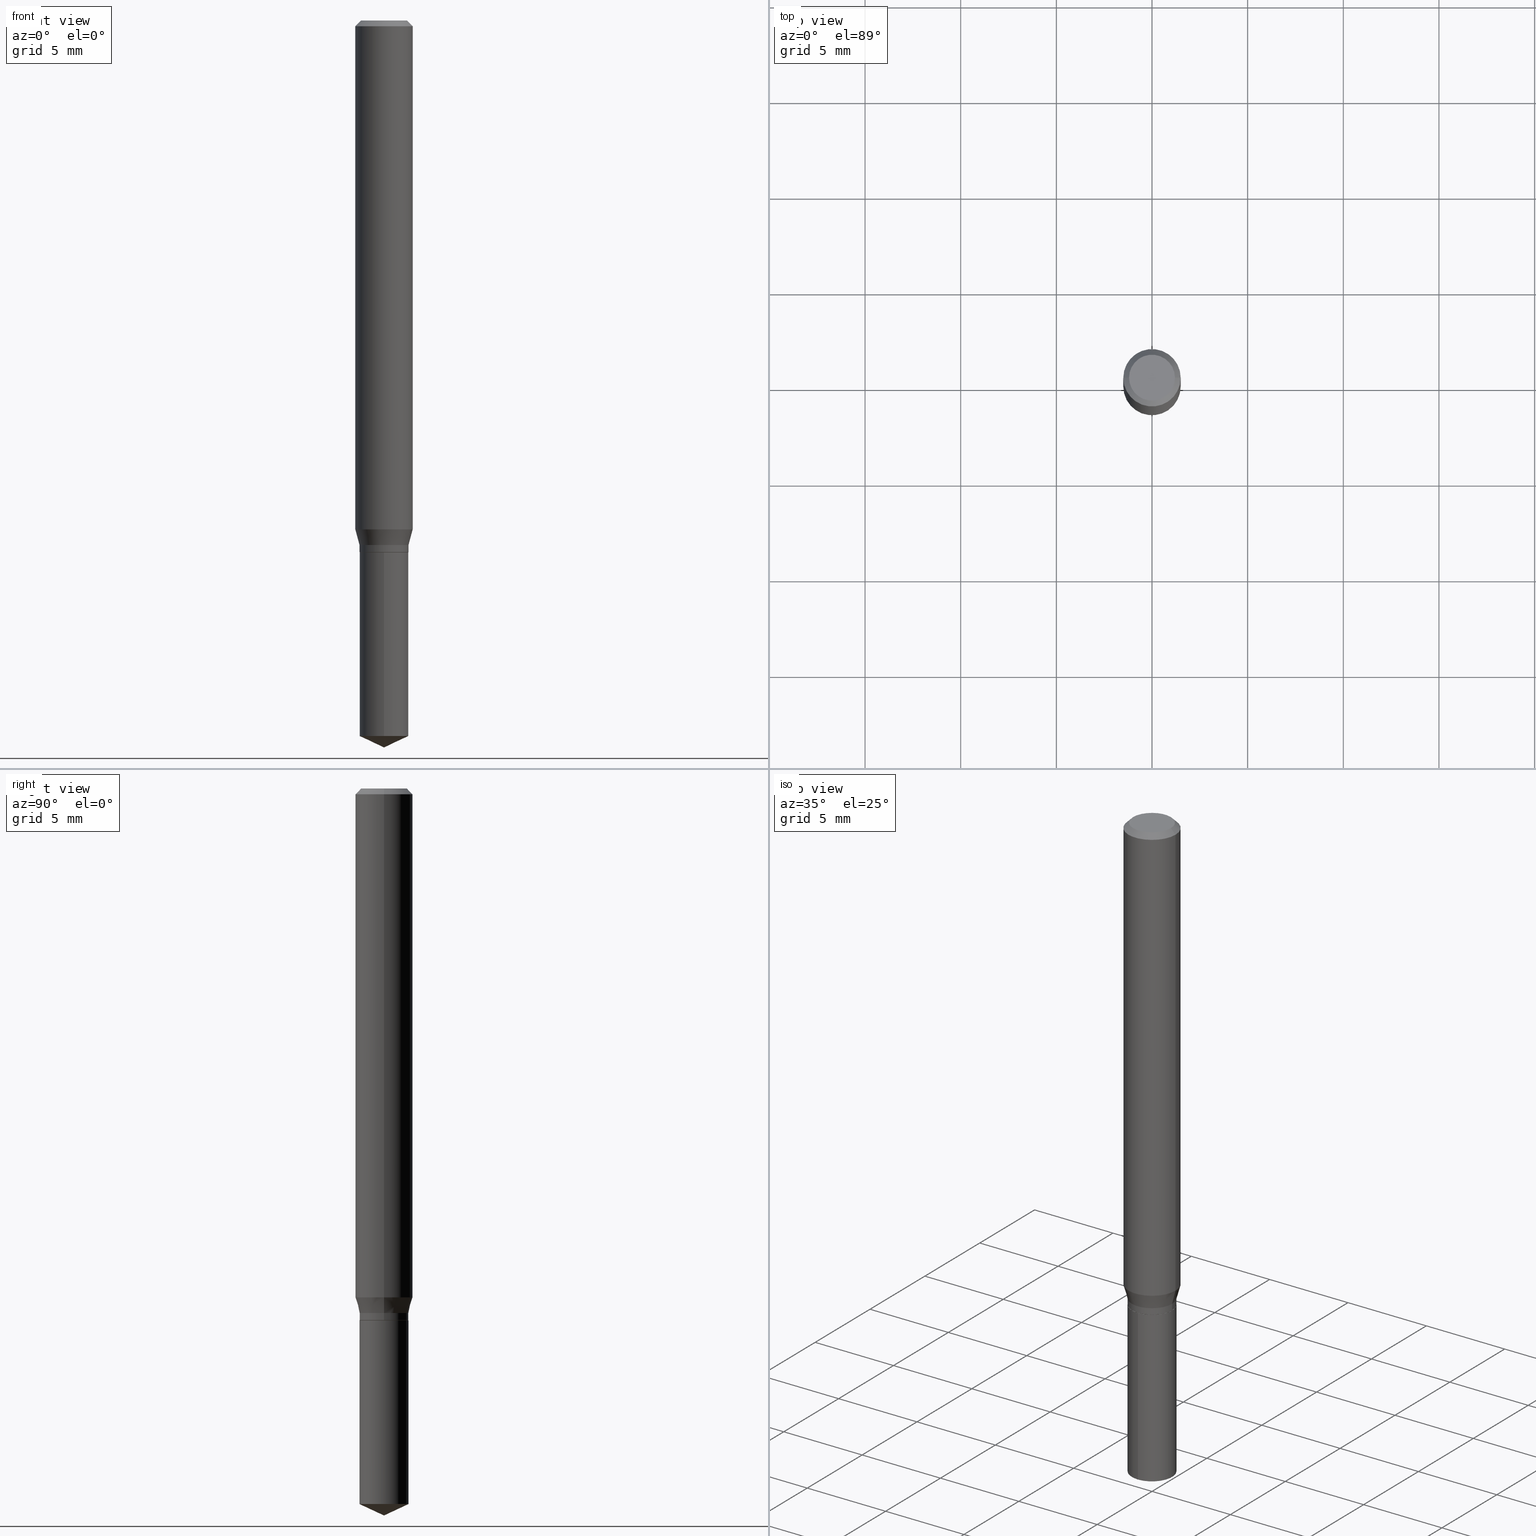
[diagram: canonical four-view strip — front | top / right | iso, engineering-drawing reading convention]
A machine part, canonical four-view strip (front | top / right | iso — engineering-drawing reading convention). The complete STEP part file that produces these views, byte-faithful:
ISO-10303-21;
HEADER;
FILE_DESCRIPTION (( 'STEP AP203' ),
    '1' );
FILE_NAME ('07668.STEP',
    '2024-04-24T00:42:20',
    ( '' ),
    ( '' ),
    'SwSTEP 2.0',
    'SolidWorks 2023',
    '' );
FILE_SCHEMA (( 'CONFIG_CONTROL_DESIGN' ));
ENDSEC;

DATA;
#1 = ORIENTED_EDGE ( 'NONE', *, *, #194, .F. ) ;
#2 = CARTESIAN_POINT ( 'NONE',  ( 2.676565608369631794E-29, -3.821426325363822773E-15, -1.094499999999999806 ) ) ;
#3 = CALENDAR_DATE ( 2024, 23, 4 ) ;
#4 = CONICAL_SURFACE ( 'NONE', #409, 0.04989999999999999991, 0.7853981633972689780 ) ;
#5 = LOCAL_TIME ( 20, 42, 20.00000000000000000, #110 ) ;
#6 = FACE_OUTER_BOUND ( 'NONE', #223, .T. ) ;
#7 = CC_DESIGN_PERSON_AND_ORGANIZATION_ASSIGNMENT ( #353, #189, ( #170 ) ) ;
#8 = CARTESIAN_POINT ( 'NONE',  ( 0.05039999999999999342, -4.171621903649789011E-15, -1.093999999999999861 ) ) ;
#9 = ORIENTED_EDGE ( 'NONE', *, *, #53, .F. ) ;
#10 = COORDINATED_UNIVERSAL_TIME_OFFSET ( 5, 0, .BEHIND. ) ;
#11 = CARTESIAN_POINT ( 'NONE',  ( -0.05039999999999999342, -3.436079232097756033E-15, -1.093999999999999861 ) ) ;
#12 = CARTESIAN_POINT ( 'NONE',  ( 0.05905000000000013710, -4.068336066525078042E-15, -1.047117760514528761 ) ) ;
#13 = AXIS2_PLACEMENT_3D ( 'NONE', #282, #436, #88 ) ;
#14 = ORIENTED_EDGE ( 'NONE', *, *, #233, .F. ) ;
#15 = CC_DESIGN_APPROVAL ( #364, ( #37 ) ) ;
#16 =( CONVERSION_BASED_UNIT ( 'INCH', #175 ) LENGTH_UNIT ( ) NAMED_UNIT ( #454 ) );
#17 = ORIENTED_EDGE ( 'NONE', *, *, #79, .F. ) ;
#18 = ADVANCED_FACE ( 'NONE', ( #247 ), #326, .T. ) ;
#19 = DIRECTION ( 'NONE',  ( 1.000000000000000000, -6.982962677686267499E-15, 4.876176775795935793E-29 ) ) ;
#20 = CARTESIAN_POINT ( 'NONE',  ( 0.04989999999999999991, -4.169876162980368296E-15, -1.094500000000000028 ) ) ;
#21 = ORIENTED_EDGE ( 'NONE', *, *, #245, .F. ) ;
#22 = CLOSED_SHELL ( 'NONE', ( #138, #96, #425, #451, #89, #379, #125, #213, #476, #277, #461, #256 ) ) ;
#23 = DIRECTION ( 'NONE',  ( 1.000000000000000000, -6.982962677686272233E-15, 0.000000000000000000 ) ) ;
#24 = AXIS2_PLACEMENT_3D ( 'NONE', #365, #77, #273 ) ;
#25 = CARTESIAN_POINT ( 'NONE',  ( -3.519413189553610679E-16, -0.05040000000000382369, -1.094499999999999806 ) ) ;
#26 = CARTESIAN_POINT ( 'NONE',  ( 2.676565608369631794E-29, -3.821426325363822773E-15, -1.094499999999999806 ) ) ;
#27 = VERTEX_POINT ( 'NONE', #473 ) ;
#28 = DIRECTION ( 'NONE',  ( 6.982962677686265922E-15, 1.000000000000000000, -3.491495526022433599E-15 ) ) ;
#29 = ORIENTED_EDGE ( 'NONE', *, *, #132, .F. ) ;
#30 = AXIS2_PLACEMENT_3D ( 'NONE', #312, #394, #278 ) ;
#31 = FACE_OUTER_BOUND ( 'NONE', #345, .T. ) ;
#32 = ORIENTED_EDGE ( 'NONE', *, *, #325, .F. ) ;
#33 = LINE ( 'NONE', #269, #367 ) ;
#34 = ORIENTED_EDGE ( 'NONE', *, *, #393, .F. ) ;
#35 = DIRECTION ( 'NONE',  ( 1.000000000000000000, -6.982962677686269866E-15, 0.000000000000000000 ) ) ;
#36 = ADVANCED_BREP_SHAPE_REPRESENTATION ( '07668', ( #201, #40, #475 ), #51 ) ;
#37 = PRODUCT_DEFINITION ( 'UNKNOWN', '', #402, #267 ) ;
#38 = ORIENTED_EDGE ( 'NONE', *, *, #288, .T. ) ;
#39 = VECTOR ( 'NONE', #177, 39.37007874015748143 ) ;
#40 = MANIFOLD_SOLID_BREP ( 'Body-Move/Copy2[2]', #22 ) ;
#41 = CIRCLE ( 'NONE', #30, 0.05039999999999999342 ) ;
#42 = VERTEX_POINT ( 'NONE', #20 ) ;
#43 = DIRECTION ( 'NONE',  ( 0.000000000000000000, 0.000000000000000000, 1.000000000000000000 ) ) ;
#44 = EDGE_LOOP ( 'NONE', ( #17, #268 ) ) ;
#45 = AXIS2_PLACEMENT_3D ( 'NONE', #204, #439, #209 ) ;
#46 = PERSON_AND_ORGANIZATION ( #362, #238 ) ;
#47 = DIRECTION ( 'NONE',  ( 1.000000000000000000, -6.982962677686265922E-15, 4.876176775795935793E-29 ) ) ;
#48 = EDGE_CURVE ( 'NONE', #235, #187, #59, .T. ) ;
#49 = DIRECTION ( 'NONE',  ( -2.445468806185136597E-29, 3.491481338843145583E-15, 1.000000000000000000 ) ) ;
#50 = CIRCLE ( 'NONE', #159, 0.05904999999999999832 ) ;
#51 =( GEOMETRIC_REPRESENTATION_CONTEXT ( 3 ) GLOBAL_UNCERTAINTY_ASSIGNED_CONTEXT ( ( #76 ) ) GLOBAL_UNIT_ASSIGNED_CONTEXT ( ( #16, #248, #130 ) ) REPRESENTATION_CONTEXT ( 'NONE', 'WORKASPACE' ) );
#52 = DIRECTION ( 'NONE',  ( -2.445468806185136597E-29, 3.491481338843145583E-15, 1.000000000000000000 ) ) ;
#53 = EDGE_CURVE ( 'NONE', #376, #343, #293, .T. ) ;
#54 = ORIENTED_EDGE ( 'NONE', *, *, #341, .T. ) ;
#55 = ORIENTED_EDGE ( 'NONE', *, *, #103, .F. ) ;
#56 = PRODUCT_RELATED_PRODUCT_CATEGORY ( 'detail', '', ( #170 ) ) ;
#57 = CARTESIAN_POINT ( 'NONE',  ( -0.05904999999999999832, 3.711095515056362547E-16, -0.01181000000000007218 ) ) ;
#58 = EDGE_LOOP ( 'NONE', ( #448, #350, #279, #262 ) ) ;
#59 = CIRCLE ( 'NONE', #348, 0.05039999999999999342 ) ;
#60 = ORIENTED_EDGE ( 'NONE', *, *, #48, .F. ) ;
#61 = EDGE_CURVE ( 'NONE', #174, #271, #196, .T. ) ;
#62 = ORIENTED_EDGE ( 'NONE', *, *, #483, .F. ) ;
#63 = CIRCLE ( 'NONE', #113, 0.05905000000000013710 ) ;
#64 = AXIS2_PLACEMENT_3D ( 'NONE', #166, #328, #469 ) ;
#65 = CIRCLE ( 'NONE', #212, 0.05039999999999999342 ) ;
#66 = DIRECTION ( 'NONE',  ( -6.982962677686266711E-15, -1.000000000000000000, 5.420333320762426626E-15 ) ) ;
#67 = LINE ( 'NONE', #481, #98 ) ;
#68 = ORIENTED_EDGE ( 'NONE', *, *, #61, .T. ) ;
#69 = PERSON_AND_ORGANIZATION ( #362, #238 ) ;
#70 = CARTESIAN_POINT ( 'NONE',  ( 2.676565608369631794E-29, -3.821426325363822773E-15, -1.094499999999999806 ) ) ;
#71 = AXIS2_PLACEMENT_3D ( 'NONE', #197, #117, #315 ) ;
#72 = CARTESIAN_POINT ( 'NONE',  ( 2.676565608369632355E-29, -3.821426325363822773E-15, -1.094500000000000028 ) ) ;
#73 = ORIENTED_EDGE ( 'NONE', *, *, #460, .F. ) ;
#74 = APPLICATION_PROTOCOL_DEFINITION ( 'international standard', 'config_control_design', 1994, #85 ) ;
#75 = DIRECTION ( 'NONE',  ( 0.2588190451025215721, 1.565188264969619995E-15, 0.9659258262890679791 ) ) ;
#76 = UNCERTAINTY_MEASURE_WITH_UNIT (LENGTH_MEASURE( 1.000000000000000082E-05 ), #16, 'distance_accuracy_value', 'NONE');
#77 = DIRECTION ( 'NONE',  ( -2.445468806185136597E-29, 3.491481338843145583E-15, 1.000000000000000000 ) ) ;
#78 = AXIS2_PLACEMENT_3D ( 'NONE', #303, #424, #199 ) ;
#79 = EDGE_CURVE ( 'NONE', #42, #147, #444, .T. ) ;
#80 = DIRECTION ( 'NONE',  ( 0.7071067811865453523, -7.319954787623248157E-15, -0.7071067811865496822 ) ) ;
#81 = PERSON_AND_ORGANIZATION_ROLE ( 'design_supplier' ) ;
#82 = DIRECTION ( 'NONE',  ( 1.000000000000000000, -6.982962677686266711E-15, 0.000000000000000000 ) ) ;
#83 = DIRECTION ( 'NONE',  ( 1.000000000000000000, -6.982962677686264344E-15, 0.000000000000000000 ) ) ;
#84 = CARTESIAN_POINT ( 'NONE',  ( -0.05904999999999999832, -1.429037772043379946E-15, -0.01181000000000007218 ) ) ;
#85 = APPLICATION_CONTEXT ( 'configuration controlled 3d designs of mechanical parts and assemblies' ) ;
#86 = DIRECTION ( 'NONE',  ( -2.445468806185136877E-29, 3.491481338843145188E-15, 1.000000000000000000 ) ) ;
#87 = VECTOR ( 'NONE', #75, 39.37007874015748143 ) ;
#88 = DIRECTION ( 'NONE',  ( 1.000000000000000000, -6.982962677686269866E-15, 0.000000000000000000 ) ) ;
#89 = ADVANCED_FACE ( 'NONE', ( #205 ), #479, .T. ) ;
#90 = VERTEX_POINT ( 'NONE', #11 ) ;
#91 = ORIENTED_EDGE ( 'NONE', *, *, #460, .T. ) ;
#92 = EDGE_LOOP ( 'NONE', ( #55, #414, #333, #101 ) ) ;
#93 = PRODUCT_DEFINITION_SHAPE ( 'NONE', 'NONE',  #37 ) ;
#94 = DIRECTION ( 'NONE',  ( -2.445468806185136877E-29, 3.491481338843145188E-15, 1.000000000000000000 ) ) ;
#95 = CARTESIAN_POINT ( 'NONE',  ( 8.265746106709734507E-48, -1.180129479067563789E-33, -3.380025165646692144E-19 ) ) ;
#96 = ADVANCED_FACE ( 'NONE', ( #399 ), #387, .T. ) ;
#97 = AXIS2_PLACEMENT_3D ( 'NONE', #95, #334, #133 ) ;
#98 = VECTOR ( 'NONE', #450, 39.37007874015748854 ) ;
#99 = EDGE_LOOP ( 'NONE', ( #297, #207, #14, #360 ) ) ;
#100 = DIRECTION ( 'NONE',  ( -6.982962677686268288E-15, -1.000000000000000000, 3.520397390770387606E-15 ) ) ;
#101 = ORIENTED_EDGE ( 'NONE', *, *, #155, .F. ) ;
#102 = CARTESIAN_POINT ( 'NONE',  ( 2.888098660104664204E-31, -4.123439461173780263E-17, -0.01181000000000007218 ) ) ;
#103 = EDGE_CURVE ( 'NONE', #246, #226, #361, .T. ) ;
#104 = DIRECTION ( 'NONE',  ( 0.7071067811864205632, -2.468850131080928224E-15, 0.7071067811866742492 ) ) ;
#105 = CC_DESIGN_DATE_AND_TIME_ASSIGNMENT ( #423, #240, ( #411 ) ) ;
#106 = DIRECTION ( 'NONE',  ( -1.000000000000000000, 6.982962677686266711E-15, 0.000000000000000000 ) ) ;
#107 = DIRECTION ( 'NONE',  ( -2.445468806185136597E-29, 3.491481338843145583E-15, 1.000000000000000000 ) ) ;
#108 = DIRECTION ( 'NONE',  ( 1.000000000000000000, 0.000000000000000000, 0.000000000000000000 ) ) ;
#109 = CARTESIAN_POINT ( 'NONE',  ( 0.000000000000000000, 0.000000000000000000, 0.000000000000000000 ) ) ;
#110 = COORDINATED_UNIVERSAL_TIME_OFFSET ( 5, 0, .BEHIND. ) ;
#111 = LINE ( 'NONE', #25, #320 ) ;
#112 = DIRECTION ( 'NONE',  ( -2.445468806185136597E-29, 3.491481338843145583E-15, 1.000000000000000000 ) ) ;
#113 = AXIS2_PLACEMENT_3D ( 'NONE', #431, #366, #369 ) ;
#114 = CC_DESIGN_SECURITY_CLASSIFICATION ( #411, ( #402 ) ) ;
#115 = CARTESIAN_POINT ( 'NONE',  ( 0.05904999999999999832, -4.463468013801466955E-16, -0.01181000000000007218 ) ) ;
#116 = DATE_AND_TIME ( #3, #145 ) ;
#117 = DIRECTION ( 'NONE',  ( -2.445468806185136597E-29, 3.491481338843145583E-15, 1.000000000000000000 ) ) ;
#118 = DATE_AND_TIME ( #434, #5 ) ;
#119 = EDGE_CURVE ( 'NONE', #452, #246, #63, .T. ) ;
#120 = AXIS2_PLACEMENT_3D ( 'NONE', #109, #304, #433 ) ;
#121 = CONICAL_SURFACE ( 'NONE', #368, 0.05904999999999999832, 0.7853981633974452814 ) ;
#122 = EDGE_LOOP ( 'NONE', ( #9, #329, #54, #281 ) ) ;
#123 = DIRECTION ( 'NONE',  ( 1.000000000000000000, -6.982962677686266711E-15, 4.876176775795936353E-29 ) ) ;
#124 = EDGE_LOOP ( 'NONE', ( #354, #418, #216, #206 ) ) ;
#125 = ADVANCED_FACE ( 'NONE', ( #430 ), #270, .T. ) ;
#126 = SECURITY_CLASSIFICATION_LEVEL ( 'unclassified' ) ;
#127 = FACE_OUTER_BOUND ( 'NONE', #317, .T. ) ;
#128 = AXIS2_PLACEMENT_3D ( 'NONE', #464, #200, #363 ) ;
#129 = CIRCLE ( 'NONE', #438, 0.05040000000000000036 ) ;
#130 =( NAMED_UNIT ( * ) SI_UNIT ( $, .STERADIAN. ) SOLID_ANGLE_UNIT ( ) );
#131 = DIRECTION ( 'NONE',  ( -6.982962677686266711E-15, -1.000000000000000000, 2.710166660381213313E-15 ) ) ;
#132 = EDGE_CURVE ( 'NONE', #167, #226, #50, .T. ) ;
#133 = DIRECTION ( 'NONE',  ( 1.000000000000000000, -6.982962677686266711E-15, 4.876185090822587894E-29 ) ) ;
#134 = AXIS2_PLACEMENT_3D ( 'NONE', #193, #344, #351 ) ;
#135 = CARTESIAN_POINT ( 'NONE',  ( 0.05039999999999999342, -3.519413189553878398E-16, 2.457593095001151258E-30 ) ) ;
#136 = ORIENTED_EDGE ( 'NONE', *, *, #233, .T. ) ;
#137 = CARTESIAN_POINT ( 'NONE',  ( 3.601188957232831225E-29, -5.141554129063645912E-15, -1.472598094028988447 ) ) ;
#138 = ADVANCED_FACE ( 'NONE', ( #127 ), #313, .T. ) ;
#139 = CC_DESIGN_PERSON_AND_ORGANIZATION_ASSIGNMENT ( #202, #81, ( #402 ) ) ;
#140 = ORIENTED_EDGE ( 'NONE', *, *, #470, .T. ) ;
#141 = ORIENTED_EDGE ( 'NONE', *, *, #155, .T. ) ;
#142 = PLANE ( 'NONE',  #420 ) ;
#143 = FACE_OUTER_BOUND ( 'NONE', #308, .T. ) ;
#144 = LINE ( 'NONE', #149, #258 ) ;
#145 = LOCAL_TIME ( 20, 42, 20.00000000000000000, #310 ) ;
#146 = APPLICATION_CONTEXT ( 'configuration controlled 3d designs of mechanical parts and assemblies' ) ;
#147 = VERTEX_POINT ( 'NONE', #406 ) ;
#148 = ORIENTED_EDGE ( 'NONE', *, *, #422, .T. ) ;
#149 = CARTESIAN_POINT ( 'NONE',  ( -0.05039999999999999342, -3.410591418324201292E-15, -1.079399999999999915 ) ) ;
#150 = APPROVAL_STATUS ( 'not_yet_approved' ) ;
#151 = EDGE_LOOP ( 'NONE', ( #244, #91, #287, #34 ) ) ;
#152 = EDGE_LOOP ( 'NONE', ( #1, #148, #157, #32 ) ) ;
#153 = CARTESIAN_POINT ( 'NONE',  ( 0.04989999999999999991, -4.169876162980368296E-15, -1.094500000000000028 ) ) ;
#154 = CIRCLE ( 'NONE', #237, 0.05039999999999999342 ) ;
#155 = EDGE_CURVE ( 'NONE', #226, #167, #284, .T. ) ;
#156 = APPROVAL_ROLE ( '' ) ;
#157 = ORIENTED_EDGE ( 'NONE', *, *, #198, .T. ) ;
#158 = DIRECTION ( 'NONE',  ( 1.000000000000000000, -6.982962677686266711E-15, 4.876176775795936353E-29 ) ) ;
#159 = AXIS2_PLACEMENT_3D ( 'NONE', #318, #400, #82 ) ;
#160 = AXIS2_PLACEMENT_3D ( 'NONE', #292, #251, #83 ) ;
#161 = DIRECTION ( 'NONE',  ( -2.438088387897960049E-29, 3.491481338843145188E-15, 1.000000000000000000 ) ) ;
#162 = CALENDAR_DATE ( 2024, 23, 4 ) ;
#163 = APPLICATION_PROTOCOL_DEFINITION ( 'international standard', 'config_control_design', 1994, #146 ) ;
#164 = EDGE_LOOP ( 'NONE', ( #413, #408, #21 ) ) ;
#165 = DATE_AND_TIME ( #323, #301 ) ;
#166 = CARTESIAN_POINT ( 'NONE',  ( 2.888098660104664204E-31, -4.123439461173780263E-17, -0.01181000000000007218 ) ) ;
#167 = VERTEX_POINT ( 'NONE', #370 ) ;
#168 = DIRECTION ( 'NONE',  ( -0.7071067811865453523, 2.468850131082234184E-15, -0.7071067811865496822 ) ) ;
#169 = ADVANCED_FACE ( 'NONE', ( #241 ), #188, .T. ) ;
#170 = PRODUCT ( '07668', '07668', '', ( #230 ) ) ;
#171 = DIRECTION ( 'NONE',  ( -6.982962677686266711E-15, -1.000000000000000000, 2.710166660381213313E-15 ) ) ;
#172 = CYLINDRICAL_SURFACE ( 'NONE', #242, 0.05039999999999999342 ) ;
#173 = EDGE_LOOP ( 'NONE', ( #62, #445, #38, #459 ) ) ;
#174 = VERTEX_POINT ( 'NONE', #477 ) ;
#175 = LENGTH_MEASURE_WITH_UNIT ( LENGTH_MEASURE( 0.02539999999999999897 ), #290 );
#176 = APPROVAL_DATE_TIME ( #165, #249 ) ;
#177 = DIRECTION ( 'NONE',  ( -2.445468806185136877E-29, 3.491481338843145188E-15, 1.000000000000000000 ) ) ;
#178 = DIRECTION ( 'NONE',  ( -2.445468806185136597E-29, 3.491481338843145583E-15, 1.000000000000000000 ) ) ;
#179 = CLOSED_SHELL ( 'NONE', ( #18, #183, #169, #283, #346 ) ) ;
#180 = CIRCLE ( 'NONE', #128, 0.04989999999999999991 ) ;
#181 = ORIENTED_EDGE ( 'NONE', *, *, #190, .F. ) ;
#182 = DIRECTION ( 'NONE',  ( -6.982962677686266711E-15, -1.000000000000000000, 5.420333320762426626E-15 ) ) ;
#183 = ADVANCED_FACE ( 'NONE', ( #443 ), #462, .T. ) ;
#184 = DIRECTION ( 'NONE',  ( 2.445458899330789267E-29, -3.491495526022433599E-15, -1.000000000000000000 ) ) ;
#185 = CYLINDRICAL_SURFACE ( 'NONE', #338, 0.05040000000000000036 ) ;
#186 = PERSON_AND_ORGANIZATION ( #362, #238 ) ;
#187 = VERTEX_POINT ( 'NONE', #291 ) ;
#188 = CONICAL_SURFACE ( 'NONE', #449, 84.42940631927592676, 1.134464013796323112 ) ;
#189 = PERSON_AND_ORGANIZATION_ROLE ( 'design_owner' ) ;
#190 = EDGE_CURVE ( 'NONE', #331, #90, #154, .T. ) ;
#191 = CARTESIAN_POINT ( 'NONE',  ( 0.000000000000000000, 0.000000000000000000, 0.000000000000000000 ) ) ;
#192 = ORIENTED_EDGE ( 'NONE', *, *, #190, .T. ) ;
#193 = CARTESIAN_POINT ( 'NONE',  ( 4.132873053354867254E-48, -5.900647395337818946E-34, -1.690012582823346072E-19 ) ) ;
#194 = EDGE_CURVE ( 'NONE', #90, #187, #471, .T. ) ;
#195 = PERSON_AND_ORGANIZATION ( #362, #238 ) ;
#196 = CIRCLE ( 'NONE', #97, 0.04724000000000000421 ) ;
#197 = CARTESIAN_POINT ( 'NONE',  ( 8.265746106709734507E-48, -1.180129479067563789E-33, -3.380025165646692144E-19 ) ) ;
#198 = EDGE_CURVE ( 'NONE', #331, #235, #260, .T. ) ;
#199 = DIRECTION ( 'NONE',  ( -1.000000000000000000, 6.982962677686266711E-15, 0.000000000000000000 ) ) ;
#200 = DIRECTION ( 'NONE',  ( -2.445468806185136597E-29, 3.491481338843145583E-15, 1.000000000000000000 ) ) ;
#201 = MANIFOLD_SOLID_BREP ( 'Body-Move/Copy2[1]', #179 ) ;
#202 = PERSON_AND_ORGANIZATION ( #362, #238 ) ;
#203 = AXIS2_PLACEMENT_3D ( 'NONE', #356, #49, #158 ) ;
#204 = CARTESIAN_POINT ( 'NONE',  ( 2.639639029396236252E-29, -3.768704957147291788E-15, -1.079399999999999915 ) ) ;
#205 = FACE_OUTER_BOUND ( 'NONE', #252, .T. ) ;
#206 = ORIENTED_EDGE ( 'NONE', *, *, #447, .F. ) ;
#207 = ORIENTED_EDGE ( 'NONE', *, *, #53, .T. ) ;
#208 = CARTESIAN_POINT ( 'NONE',  ( 3.581135388231172189E-16, 0.05039999999999617702, -1.094500000000000028 ) ) ;
#209 = DIRECTION ( 'NONE',  ( 1.000000000000000000, -6.982962677686272233E-15, 0.000000000000000000 ) ) ;
#210 = CARTESIAN_POINT ( 'NONE',  ( 2.676565608369631794E-29, -3.821426325363822773E-15, -1.094499999999999806 ) ) ;
#211 = CARTESIAN_POINT ( 'NONE',  ( 3.581135388231264880E-16, 0.05039999999999486557, -1.472598094028988891 ) ) ;
#212 = AXIS2_PLACEMENT_3D ( 'NONE', #309, #107, #466 ) ;
#213 = ADVANCED_FACE ( 'NONE', ( #255 ), #217, .T. ) ;
#214 = CARTESIAN_POINT ( 'NONE',  ( -9.261924752013118283E-28, 1.322368428517963298E-13, 37.87397874015748300 ) ) ;
#215 = CARTESIAN_POINT ( 'NONE',  ( 2.639639029396236252E-29, -3.768704957147291788E-15, -1.079399999999999915 ) ) ;
#216 = ORIENTED_EDGE ( 'NONE', *, *, #119, .F. ) ;
#217 = CYLINDRICAL_SURFACE ( 'NONE', #319, 0.05905000000000006771 ) ;
#218 = VERTEX_POINT ( 'NONE', #432 ) ;
#219 = CARTESIAN_POINT ( 'NONE',  ( 2.676565608369631794E-29, -3.821426325363822773E-15, -1.094499999999999806 ) ) ;
#220 = LINE ( 'NONE', #265, #457 ) ;
#221 = AXIS2_PLACEMENT_3D ( 'NONE', #489, #264, #66 ) ;
#222 = DIRECTION ( 'NONE',  ( -2.445458899330790108E-29, 3.491495526022433205E-15, 1.000000000000000000 ) ) ;
#223 = EDGE_LOOP ( 'NONE', ( #289, #229, #29, #332 ) ) ;
#224 = CARTESIAN_POINT ( 'NONE',  ( -3.519413189553610679E-16, -0.05040000000000382369, -1.094499999999999806 ) ) ;
#225 = DIRECTION ( 'NONE',  ( -6.328713451373394622E-15, -0.9063077870366521571, 0.4226182617406945008 ) ) ;
#226 = VERTEX_POINT ( 'NONE', #84 ) ;
#227 = COORDINATED_UNIVERSAL_TIME_OFFSET ( 5, 0, .BEHIND. ) ;
#228 = AXIS2_PLACEMENT_3D ( 'NONE', #70, #385, #257 ) ;
#229 = ORIENTED_EDGE ( 'NONE', *, *, #103, .T. ) ;
#230 = MECHANICAL_CONTEXT ( 'NONE', #146, 'mechanical' ) ;
#231 = APPROVAL_PERSON_ORGANIZATION ( #186, #364, #384 ) ;
#232 = DIRECTION ( 'NONE',  ( -2.445458899330790108E-29, 3.491495526022433205E-15, 1.000000000000000000 ) ) ;
#233 = EDGE_CURVE ( 'NONE', #250, #343, #427, .T. ) ;
#234 = PLANE ( 'NONE',  #380 ) ;
#235 = VERTEX_POINT ( 'NONE', #386 ) ;
#236 = CC_DESIGN_PERSON_AND_ORGANIZATION_ASSIGNMENT ( #467, #429, ( #402 ) ) ;
#237 = AXIS2_PLACEMENT_3D ( 'NONE', #412, #295, #23 ) ;
#238 = ORGANIZATION ( 'UNSPECIFIED', 'UNSPECIFIED', '' ) ;
#239 = FACE_OUTER_BOUND ( 'NONE', #44, .T. ) ;
#240 = DATE_TIME_ROLE ( 'classification_date' ) ;
#241 = FACE_OUTER_BOUND ( 'NONE', #164, .T. ) ;
#242 = AXIS2_PLACEMENT_3D ( 'NONE', #324, #286, #19 ) ;
#243 = ORIENTED_EDGE ( 'NONE', *, *, #198, .F. ) ;
#244 = ORIENTED_EDGE ( 'NONE', *, *, #61, .F. ) ;
#245 = EDGE_CURVE ( 'NONE', #376, #218, #468, .T. ) ;
#246 = VERTEX_POINT ( 'NONE', #307 ) ;
#247 = FACE_OUTER_BOUND ( 'NONE', #99, .T. ) ;
#248 =( NAMED_UNIT ( * ) PLANE_ANGLE_UNIT ( ) SI_UNIT ( $, .RADIAN. ) );
#249 = APPROVAL ( #398, 'UNSPECIFIED' ) ;
#250 = VERTEX_POINT ( 'NONE', #224 ) ;
#251 = DIRECTION ( 'NONE',  ( -2.445468806185136597E-29, 3.491481338843145583E-15, 1.000000000000000000 ) ) ;
#252 = EDGE_LOOP ( 'NONE', ( #192, #352, #60, #243 ) ) ;
#253 = DIRECTION ( 'NONE',  ( -2.445458899330790108E-29, 3.491495526022433205E-15, 1.000000000000000000 ) ) ;
#254 = EDGE_LOOP ( 'NONE', ( #73, #390, #381, #141 ) ) ;
#255 = FACE_OUTER_BOUND ( 'NONE', #92, .T. ) ;
#256 = ADVANCED_FACE ( 'NONE', ( #311 ), #4, .T. ) ;
#257 = DIRECTION ( 'NONE',  ( -6.982962677686266711E-15, -1.000000000000000000, 2.710166660381213313E-15 ) ) ;
#258 = VECTOR ( 'NONE', #486, 39.37007874015748143 ) ;
#259 = CC_DESIGN_APPROVAL ( #327, ( #402 ) ) ;
#260 = LINE ( 'NONE', #135, #371 ) ;
#261 = LINE ( 'NONE', #302, #330 ) ;
#262 = ORIENTED_EDGE ( 'NONE', *, *, #403, .F. ) ;
#263 = EDGE_CURVE ( 'NONE', #452, #167, #33, .T. ) ;
#264 = DIRECTION ( 'NONE',  ( -2.445458899330790108E-29, 3.491495526022433205E-15, 1.000000000000000000 ) ) ;
#265 = CARTESIAN_POINT ( 'NONE',  ( -0.04989999999999999991, -3.466865500219533176E-15, -1.094500000000000028 ) ) ;
#266 = CC_DESIGN_DATE_AND_TIME_ASSIGNMENT ( #116, #482, ( #37 ) ) ;
#267 = DESIGN_CONTEXT ( 'detailed design', #85, 'design' ) ;
#268 = ORIENTED_EDGE ( 'NONE', *, *, #463, .F. ) ;
#269 = CARTESIAN_POINT ( 'NONE',  ( 0.05905000000000006771, -4.123439461173745257E-16, 2.879382386107503723E-30 ) ) ;
#270 = CONICAL_SURFACE ( 'NONE', #45, 0.05039999999999999342, 0.2617993877991502960 ) ;
#271 = VERTEX_POINT ( 'NONE', #389 ) ;
#272 = VECTOR ( 'NONE', #168, 39.37007874015748143 ) ;
#273 = DIRECTION ( 'NONE',  ( 1.000000000000000000, -6.982962677686272233E-15, 0.000000000000000000 ) ) ;
#274 = LINE ( 'NONE', #426, #87 ) ;
#275 = APPROVAL_DATE_TIME ( #118, #327 ) ;
#276 = VECTOR ( 'NONE', #86, 39.37007874015748143 ) ;
#277 = ADVANCED_FACE ( 'NONE', ( #143 ), #382, .F. ) ;
#278 = DIRECTION ( 'NONE',  ( 1.000000000000000000, -6.982962677686272233E-15, 0.000000000000000000 ) ) ;
#279 = ORIENTED_EDGE ( 'NONE', *, *, #447, .T. ) ;
#280 = DIRECTION ( 'NONE',  ( -2.445468806185136597E-29, 3.491481338843145583E-15, 1.000000000000000000 ) ) ;
#281 = ORIENTED_EDGE ( 'NONE', *, *, #397, .F. ) ;
#282 = CARTESIAN_POINT ( 'NONE',  ( 2.676565608369632355E-29, -3.821426325363822773E-15, -1.094500000000000028 ) ) ;
#283 = ADVANCED_FACE ( 'NONE', ( #490 ), #185, .T. ) ;
#284 = CIRCLE ( 'NONE', #64, 0.05904999999999999832 ) ;
#285 = LOCAL_TIME ( 20, 42, 20.00000000000000000, #358 ) ;
#286 = DIRECTION ( 'NONE',  ( -2.445468806185136597E-29, 3.491481338843145583E-15, 1.000000000000000000 ) ) ;
#287 = ORIENTED_EDGE ( 'NONE', *, *, #132, .T. ) ;
#288 = EDGE_CURVE ( 'NONE', #42, #331, #299, .T. ) ;
#289 = ORIENTED_EDGE ( 'NONE', *, *, #119, .T. ) ;
#290 =( LENGTH_UNIT ( ) NAMED_UNIT ( * ) SI_UNIT ( $, .METRE. ) );
#291 = CARTESIAN_POINT ( 'NONE',  ( -0.05039999999999999342, -3.436079232097756033E-15, -1.079399999999999915 ) ) ;
#292 = CARTESIAN_POINT ( 'NONE',  ( 2.560693819740718204E-29, -3.655992120407703121E-15, -1.047117760514528761 ) ) ;
#293 = LINE ( 'NONE', #208, #484 ) ;
#294 = EDGE_CURVE ( 'NONE', #187, #246, #144, .T. ) ;
#295 = DIRECTION ( 'NONE',  ( -2.445468806185136597E-29, 3.491481338843145583E-15, 1.000000000000000000 ) ) ;
#296 = DIRECTION ( 'NONE',  ( -2.445458899330790108E-29, 3.491495526022433205E-15, 1.000000000000000000 ) ) ;
#297 = ORIENTED_EDGE ( 'NONE', *, *, #355, .T. ) ;
#298 = CARTESIAN_POINT ( 'NONE',  ( -9.261924752013118283E-28, 1.322368428517963298E-13, 37.87397874015748300 ) ) ;
#299 = LINE ( 'NONE', #153, #419 ) ;
#300 = PERSON_AND_ORGANIZATION_ROLE ( 'creator' ) ;
#301 = LOCAL_TIME ( 20, 42, 20.00000000000000000, #10 ) ;
#302 = CARTESIAN_POINT ( 'NONE',  ( 3.658651059288795076E-29, -5.223626456482161457E-15, -1.496099999999999985 ) ) ;
#303 = CARTESIAN_POINT ( 'NONE',  ( 2.888098660104664204E-31, -4.123439461173780263E-17, -0.01181000000000007218 ) ) ;
#304 = DIRECTION ( 'NONE',  ( -2.445468806185136597E-29, 3.491481338843145583E-15, 1.000000000000000000 ) ) ;
#305 = ORIENTED_EDGE ( 'NONE', *, *, #288, .F. ) ;
#306 = APPROVAL_STATUS ( 'not_yet_approved' ) ;
#307 = CARTESIAN_POINT ( 'NONE',  ( -0.05905000000000013710, -3.236416634941363234E-15, -1.047117760514528761 ) ) ;
#308 = EDGE_LOOP ( 'NONE', ( #377, #68 ) ) ;
#309 = CARTESIAN_POINT ( 'NONE',  ( 2.639639029396236252E-29, -3.768704957147291788E-15, -1.079399999999999915 ) ) ;
#310 = COORDINATED_UNIVERSAL_TIME_OFFSET ( 5, 0, .BEHIND. ) ;
#311 = FACE_OUTER_BOUND ( 'NONE', #173, .T. ) ;
#312 = CARTESIAN_POINT ( 'NONE',  ( 2.675342873966538993E-29, -3.819680584694400481E-15, -1.093999999999999861 ) ) ;
#313 = CONICAL_SURFACE ( 'NONE', #13, 0.04989999999999999991, 0.7853981633972689780 ) ;
#314 = CIRCLE ( 'NONE', #71, 0.04724000000000000421 ) ;
#315 = DIRECTION ( 'NONE',  ( 1.000000000000000000, -6.982962677686266711E-15, 4.876185090822587894E-29 ) ) ;
#316 = EDGE_CURVE ( 'NONE', #27, #218, #261, .T. ) ;
#317 = EDGE_LOOP ( 'NONE', ( #465, #347, #181, #305 ) ) ;
#318 = CARTESIAN_POINT ( 'NONE',  ( 2.888098660104664204E-31, -4.123439461173780263E-17, -0.01181000000000007218 ) ) ;
#319 = AXIS2_PLACEMENT_3D ( 'NONE', #321, #280, #123 ) ;
#320 = VECTOR ( 'NONE', #474, 39.37007874015748143 ) ;
#321 = CARTESIAN_POINT ( 'NONE',  ( 0.000000000000000000, 0.000000000000000000, 0.000000000000000000 ) ) ;
#322 = FACE_OUTER_BOUND ( 'NONE', #124, .T. ) ;
#323 = CALENDAR_DATE ( 2024, 23, 4 ) ;
#324 = CARTESIAN_POINT ( 'NONE',  ( 0.000000000000000000, 0.000000000000000000, 0.000000000000000000 ) ) ;
#325 = EDGE_CURVE ( 'NONE', #187, #235, #65, .T. ) ;
#326 = CYLINDRICAL_SURFACE ( 'NONE', #401, 0.05040000000000000036 ) ;
#327 = APPROVAL ( #306, 'UNSPECIFIED' ) ;
#328 = DIRECTION ( 'NONE',  ( -2.445468806185136597E-29, 3.491481338843145583E-15, 1.000000000000000000 ) ) ;
#329 = ORIENTED_EDGE ( 'NONE', *, *, #245, .T. ) ;
#330 = VECTOR ( 'NONE', #225, 39.37007874015748854 ) ;
#331 = VERTEX_POINT ( 'NONE', #8 ) ;
#332 = ORIENTED_EDGE ( 'NONE', *, *, #263, .F. ) ;
#333 = ORIENTED_EDGE ( 'NONE', *, *, #263, .T. ) ;
#334 = DIRECTION ( 'NONE',  ( -2.445468806185136597E-29, 3.491481338843145583E-15, 1.000000000000000000 ) ) ;
#335 = DATE_AND_TIME ( #421, #395 ) ;
#336 = CARTESIAN_POINT ( 'NONE',  ( 3.581135388231265373E-16, 0.05039999999999617702, -1.094500000000000028 ) ) ;
#337 = DIRECTION ( 'NONE',  ( 1.000000000000000000, -6.982962677686269866E-15, 0.000000000000000000 ) ) ;
#338 = AXIS2_PLACEMENT_3D ( 'NONE', #2, #232, #456 ) ;
#339 = APPROVAL_PERSON_ORGANIZATION ( #69, #327, #453 ) ;
#340 = ORIENTED_EDGE ( 'NONE', *, *, #316, .F. ) ;
#341 = EDGE_CURVE ( 'NONE', #218, #250, #111, .T. ) ;
#342 = DIRECTION ( 'NONE',  ( -6.982962677686268288E-15, -1.000000000000000000, 3.520397390770387606E-15 ) ) ;
#343 = VERTEX_POINT ( 'NONE', #336 ) ;
#344 = DIRECTION ( 'NONE',  ( 2.438088387897960049E-29, -3.491481338843145188E-15, -1.000000000000000000 ) ) ;
#345 = EDGE_LOOP ( 'NONE', ( #136, #488 ) ) ;
#346 = ADVANCED_FACE ( 'NONE', ( #31 ), #142, .F. ) ;
#347 = ORIENTED_EDGE ( 'NONE', *, *, #483, .T. ) ;
#348 = AXIS2_PLACEMENT_3D ( 'NONE', #215, #52, #407 ) ;
#349 = VECTOR ( 'NONE', #80, 39.37007874015748143 ) ;
#350 = ORIENTED_EDGE ( 'NONE', *, *, #325, .T. ) ;
#351 = DIRECTION ( 'NONE',  ( -1.000000000000000000, 6.982962677686265922E-15, -4.876176775795935793E-29 ) ) ;
#352 = ORIENTED_EDGE ( 'NONE', *, *, #194, .T. ) ;
#353 = PERSON_AND_ORGANIZATION ( #362, #238 ) ;
#354 = ORIENTED_EDGE ( 'NONE', *, *, #48, .T. ) ;
#355 = EDGE_CURVE ( 'NONE', #218, #376, #359, .T. ) ;
#356 = CARTESIAN_POINT ( 'NONE',  ( 0.000000000000000000, 0.000000000000000000, 0.000000000000000000 ) ) ;
#357 = APPROVAL_PERSON_ORGANIZATION ( #46, #249, #156 ) ;
#358 = COORDINATED_UNIVERSAL_TIME_OFFSET ( 5, 0, .BEHIND. ) ;
#359 = CIRCLE ( 'NONE', #485, 0.05040000000000000036 ) ;
#360 = ORIENTED_EDGE ( 'NONE', *, *, #341, .F. ) ;
#361 = LINE ( 'NONE', #435, #276 ) ;
#362 = PERSON ( 'UNSPECIFIED', 'UNSPECIFIED', 'UNSPECIFIED', ('UNSPECIFIED'), ('UNSPECIFIED'), ('UNSPECIFIED') ) ;
#363 = DIRECTION ( 'NONE',  ( 1.000000000000000000, -6.982962677686269866E-15, 0.000000000000000000 ) ) ;
#364 = APPROVAL ( #150, 'UNSPECIFIED' ) ;
#365 = CARTESIAN_POINT ( 'NONE',  ( 2.639639029396236252E-29, -3.768704957147291788E-15, -1.079399999999999915 ) ) ;
#366 = DIRECTION ( 'NONE',  ( -2.445468806185136597E-29, 3.491481338843145583E-15, 1.000000000000000000 ) ) ;
#367 = VECTOR ( 'NONE', #480, 39.37007874015748143 ) ;
#368 = AXIS2_PLACEMENT_3D ( 'NONE', #102, #415, #106 ) ;
#369 = DIRECTION ( 'NONE',  ( 1.000000000000000000, -6.982962677686264344E-15, 0.000000000000000000 ) ) ;
#370 = CARTESIAN_POINT ( 'NONE',  ( 0.05904999999999999832, -4.535783407291118600E-16, -0.01181000000000007218 ) ) ;
#371 = VECTOR ( 'NONE', #94, 39.37007874015748143 ) ;
#372 = FACE_OUTER_BOUND ( 'NONE', #152, .T. ) ;
#373 = DIRECTION ( 'NONE',  ( -0.7071067811864205632, 7.493145998869895043E-15, 0.7071067811866742492 ) ) ;
#374 = CARTESIAN_POINT ( 'NONE',  ( -0.05039999999999999342, 3.581135388230904469E-16, -2.479143285488472033E-30 ) ) ;
#375 = DIRECTION ( 'NONE',  ( -2.445458899330790108E-29, 3.491495526022433599E-15, 1.000000000000000000 ) ) ;
#376 = VERTEX_POINT ( 'NONE', #211 ) ;
#377 = ORIENTED_EDGE ( 'NONE', *, *, #442, .T. ) ;
#378 = AXIS2_PLACEMENT_3D ( 'NONE', #298, #253, #100 ) ;
#379 = ADVANCED_FACE ( 'NONE', ( #372 ), #172, .T. ) ;
#380 = AXIS2_PLACEMENT_3D ( 'NONE', #396, #161, #47 ) ;
#381 = ORIENTED_EDGE ( 'NONE', *, *, #393, .T. ) ;
#382 = PLANE ( 'NONE',  #134 ) ;
#383 = CC_DESIGN_PERSON_AND_ORGANIZATION_ASSIGNMENT ( #195, #405, ( #411 ) ) ;
#384 = APPROVAL_ROLE ( '' ) ;
#385 = DIRECTION ( 'NONE',  ( -2.445458899330790108E-29, 3.491495526022433205E-15, 1.000000000000000000 ) ) ;
#386 = CARTESIAN_POINT ( 'NONE',  ( 0.05039999999999999342, -4.120646276102679529E-15, -1.079399999999999915 ) ) ;
#387 = CONICAL_SURFACE ( 'NONE', #78, 0.05904999999999999832, 0.7853981633974452814 ) ;
#388 = CIRCLE ( 'NONE', #160, 0.05905000000000013710 ) ;
#389 = CARTESIAN_POINT ( 'NONE',  ( -0.04724000000000000421, 3.504923541997677355E-16, -3.380025165670481712E-19 ) ) ;
#390 = ORIENTED_EDGE ( 'NONE', *, *, #442, .F. ) ;
#391 = APPROVAL_DATE_TIME ( #335, #364 ) ;
#392 = LINE ( 'NONE', #115, #349 ) ;
#393 = EDGE_CURVE ( 'NONE', #271, #226, #440, .T. ) ;
#394 = DIRECTION ( 'NONE',  ( -2.445468806185136597E-29, 3.491481338843145583E-15, 1.000000000000000000 ) ) ;
#395 = LOCAL_TIME ( 20, 42, 20.00000000000000000, #227 ) ;
#396 = CARTESIAN_POINT ( 'NONE',  ( 5.844702496760615200E-30, -6.817425953686002243E-15, -1.094500000000000028 ) ) ;
#397 = EDGE_CURVE ( 'NONE', #343, #250, #129, .T. ) ;
#398 = APPROVAL_STATUS ( 'not_yet_approved' ) ;
#399 = FACE_OUTER_BOUND ( 'NONE', #151, .T. ) ;
#400 = DIRECTION ( 'NONE',  ( -2.445468806185136597E-29, 3.491481338843145583E-15, 1.000000000000000000 ) ) ;
#401 = AXIS2_PLACEMENT_3D ( 'NONE', #26, #404, #171 ) ;
#402 = PRODUCT_DEFINITION_FORMATION_WITH_SPECIFIED_SOURCE ( 'ANY', '', #170, .NOT_KNOWN. ) ;
#403 = EDGE_CURVE ( 'NONE', #246, #452, #388, .T. ) ;
#404 = DIRECTION ( 'NONE',  ( -2.445458899330790108E-29, 3.491495526022433205E-15, 1.000000000000000000 ) ) ;
#405 = PERSON_AND_ORGANIZATION_ROLE ( 'classification_officer' ) ;
#406 = CARTESIAN_POINT ( 'NONE',  ( -0.04989999999999999991, -3.464216273045421580E-15, -1.094500000000000028 ) ) ;
#407 = DIRECTION ( 'NONE',  ( 1.000000000000000000, -6.982962677686272233E-15, 0.000000000000000000 ) ) ;
#408 = ORIENTED_EDGE ( 'NONE', *, *, #316, .T. ) ;
#409 = AXIS2_PLACEMENT_3D ( 'NONE', #72, #112, #35 ) ;
#410 = CARTESIAN_POINT ( 'NONE',  ( 2.676565608369632355E-29, -3.821426325363822773E-15, -1.094500000000000028 ) ) ;
#411 = SECURITY_CLASSIFICATION ( '', '', #126 ) ;
#412 = CARTESIAN_POINT ( 'NONE',  ( 2.675342873966538993E-29, -3.819680584694400481E-15, -1.093999999999999861 ) ) ;
#413 = ORIENTED_EDGE ( 'NONE', *, *, #470, .F. ) ;
#414 = ORIENTED_EDGE ( 'NONE', *, *, #403, .T. ) ;
#415 = DIRECTION ( 'NONE',  ( 2.445468806185136597E-29, -3.491481338843145583E-15, -1.000000000000000000 ) ) ;
#416 = CC_DESIGN_PERSON_AND_ORGANIZATION_ASSIGNMENT ( #487, #300, ( #37 ) ) ;
#417 = CC_DESIGN_APPROVAL ( #249, ( #411 ) ) ;
#418 = ORIENTED_EDGE ( 'NONE', *, *, #294, .T. ) ;
#419 = VECTOR ( 'NONE', #104, 39.37007874015748854 ) ;
#420 = AXIS2_PLACEMENT_3D ( 'NONE', #219, #184, #28 ) ;
#421 = CALENDAR_DATE ( 2024, 23, 4 ) ;
#422 = EDGE_CURVE ( 'NONE', #90, #331, #41, .T. ) ;
#423 = DATE_AND_TIME ( #162, #285 ) ;
#424 = DIRECTION ( 'NONE',  ( 2.445468806185136597E-29, -3.491481338843145583E-15, -1.000000000000000000 ) ) ;
#425 = ADVANCED_FACE ( 'NONE', ( #6 ), #458, .T. ) ;
#426 = CARTESIAN_POINT ( 'NONE',  ( 0.05039999999999999342, -4.120646276102679529E-15, -1.079399999999999915 ) ) ;
#427 = CIRCLE ( 'NONE', #228, 0.05040000000000000036 ) ;
#428 = CONICAL_SURFACE ( 'NONE', #24, 0.05039999999999999342, 0.2617993877991502960 ) ;
#429 = PERSON_AND_ORGANIZATION_ROLE ( 'creator' ) ;
#430 = FACE_OUTER_BOUND ( 'NONE', #58, .T. ) ;
#431 = CARTESIAN_POINT ( 'NONE',  ( 2.560693819740718204E-29, -3.655992120407703121E-15, -1.047117760514528761 ) ) ;
#432 = CARTESIAN_POINT ( 'NONE',  ( -3.519413189553517988E-16, -0.05040000000000514901, -1.472598094028988225 ) ) ;
#433 = DIRECTION ( 'NONE',  ( 1.000000000000000000, -6.982962677686267499E-15, 4.876176775795935793E-29 ) ) ;
#434 = CALENDAR_DATE ( 2024, 23, 4 ) ;
#435 = CARTESIAN_POINT ( 'NONE',  ( -0.05905000000000006771, 4.195754854663396409E-16, -2.904631170795525045E-30 ) ) ;
#436 = DIRECTION ( 'NONE',  ( -2.445468806185136597E-29, 3.491481338843145583E-15, 1.000000000000000000 ) ) ;
#437 = AXIS2_PLACEMENT_3D ( 'NONE', #410, #178, #337 ) ;
#438 = AXIS2_PLACEMENT_3D ( 'NONE', #210, #472, #131 ) ;
#439 = DIRECTION ( 'NONE',  ( -2.445468806185136597E-29, 3.491481338843145583E-15, 1.000000000000000000 ) ) ;
#440 = LINE ( 'NONE', #57, #272 ) ;
#441 = SHAPE_DEFINITION_REPRESENTATION ( #93, #36 ) ;
#442 = EDGE_CURVE ( 'NONE', #271, #174, #314, .T. ) ;
#443 = FACE_OUTER_BOUND ( 'NONE', #455, .T. ) ;
#444 = CIRCLE ( 'NONE', #437, 0.04989999999999999991 ) ;
#445 = ORIENTED_EDGE ( 'NONE', *, *, #463, .T. ) ;
#446 = FACE_OUTER_BOUND ( 'NONE', #254, .T. ) ;
#447 = EDGE_CURVE ( 'NONE', #235, #452, #274, .T. ) ;
#448 = ORIENTED_EDGE ( 'NONE', *, *, #294, .F. ) ;
#449 = AXIS2_PLACEMENT_3D ( 'NONE', #214, #222, #342 ) ;
#450 = DIRECTION ( 'NONE',  ( 6.439704144417050863E-15, 0.9063077870366551547, 0.4226182617406882835 ) ) ;
#451 = ADVANCED_FACE ( 'NONE', ( #322 ), #428, .T. ) ;
#452 = VERTEX_POINT ( 'NONE', #12 ) ;
#453 = APPROVAL_ROLE ( '' ) ;
#454 = DIMENSIONAL_EXPONENTS ( 1.000000000000000000, 0.000000000000000000, 0.000000000000000000, 0.000000000000000000, 0.000000000000000000, 0.000000000000000000, 0.000000000000000000 ) ;
#455 = EDGE_LOOP ( 'NONE', ( #340, #140, #478 ) ) ;
#456 = DIRECTION ( 'NONE',  ( -6.982962677686266711E-15, -1.000000000000000000, 2.710166660381213313E-15 ) ) ;
#457 = VECTOR ( 'NONE', #373, 39.37007874015748854 ) ;
#458 = CYLINDRICAL_SURFACE ( 'NONE', #203, 0.05905000000000006771 ) ;
#459 = ORIENTED_EDGE ( 'NONE', *, *, #422, .F. ) ;
#460 = EDGE_CURVE ( 'NONE', #174, #167, #392, .T. ) ;
#461 = ADVANCED_FACE ( 'NONE', ( #239 ), #234, .F. ) ;
#462 = CONICAL_SURFACE ( 'NONE', #378, 84.42940631927592676, 1.134464013796323112 ) ;
#463 = EDGE_CURVE ( 'NONE', #147, #42, #180, .T. ) ;
#464 = CARTESIAN_POINT ( 'NONE',  ( 2.676565608369632355E-29, -3.821426325363822773E-15, -1.094500000000000028 ) ) ;
#465 = ORIENTED_EDGE ( 'NONE', *, *, #79, .T. ) ;
#466 = DIRECTION ( 'NONE',  ( 1.000000000000000000, -6.982962677686272233E-15, 0.000000000000000000 ) ) ;
#467 = PERSON_AND_ORGANIZATION ( #362, #238 ) ;
#468 = CIRCLE ( 'NONE', #221, 0.05040000000000000036 ) ;
#469 = DIRECTION ( 'NONE',  ( 1.000000000000000000, -6.982962677686266711E-15, 0.000000000000000000 ) ) ;
#470 = EDGE_CURVE ( 'NONE', #27, #376, #67, .T. ) ;
#471 = LINE ( 'NONE', #374, #39 ) ;
#472 = DIRECTION ( 'NONE',  ( -2.445458899330790108E-29, 3.491495526022433205E-15, 1.000000000000000000 ) ) ;
#473 = CARTESIAN_POINT ( 'NONE',  ( 3.658651059288794515E-29, -5.223626456482161457E-15, -1.496099999999999985 ) ) ;
#474 = DIRECTION ( 'NONE',  ( -2.445458899330790108E-29, 3.491495526022433599E-15, 1.000000000000000000 ) ) ;
#475 = AXIS2_PLACEMENT_3D ( 'NONE', #191, #43, #108 ) ;
#476 = ADVANCED_FACE ( 'NONE', ( #446 ), #121, .T. ) ;
#477 = CARTESIAN_POINT ( 'NONE',  ( 0.04724000000000000421, -3.852183633974369345E-16, -3.380025165621689721E-19 ) ) ;
#478 = ORIENTED_EDGE ( 'NONE', *, *, #355, .F. ) ;
#479 = CYLINDRICAL_SURFACE ( 'NONE', #120, 0.05039999999999999342 ) ;
#480 = DIRECTION ( 'NONE',  ( -2.445468806185136877E-29, 3.491481338843145188E-15, 1.000000000000000000 ) ) ;
#481 = CARTESIAN_POINT ( 'NONE',  ( 3.658672935554494692E-29, -5.223595400746700193E-15, -1.496099999999999985 ) ) ;
#482 = DATE_TIME_ROLE ( 'creation_date' ) ;
#483 = EDGE_CURVE ( 'NONE', #147, #90, #220, .T. ) ;
#484 = VECTOR ( 'NONE', #375, 39.37007874015748143 ) ;
#485 = AXIS2_PLACEMENT_3D ( 'NONE', #137, #296, #182 ) ;
#486 = DIRECTION ( 'NONE',  ( -0.2588190451025215721, 5.211531920934551831E-15, 0.9659258262890679791 ) ) ;
#487 = PERSON_AND_ORGANIZATION ( #362, #238 ) ;
#488 = ORIENTED_EDGE ( 'NONE', *, *, #397, .T. ) ;
#489 = CARTESIAN_POINT ( 'NONE',  ( 3.601188957232831225E-29, -5.141554129063645912E-15, -1.472598094028988447 ) ) ;
#490 = FACE_OUTER_BOUND ( 'NONE', #122, .T. ) ;
ENDSEC;
END-ISO-10303-21;
